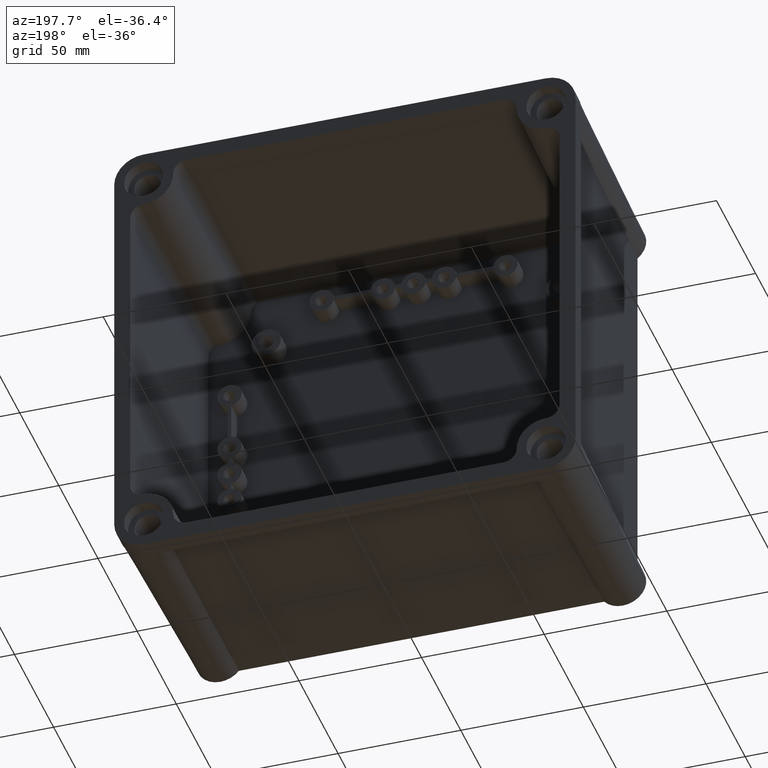
[diagram: clean part render]
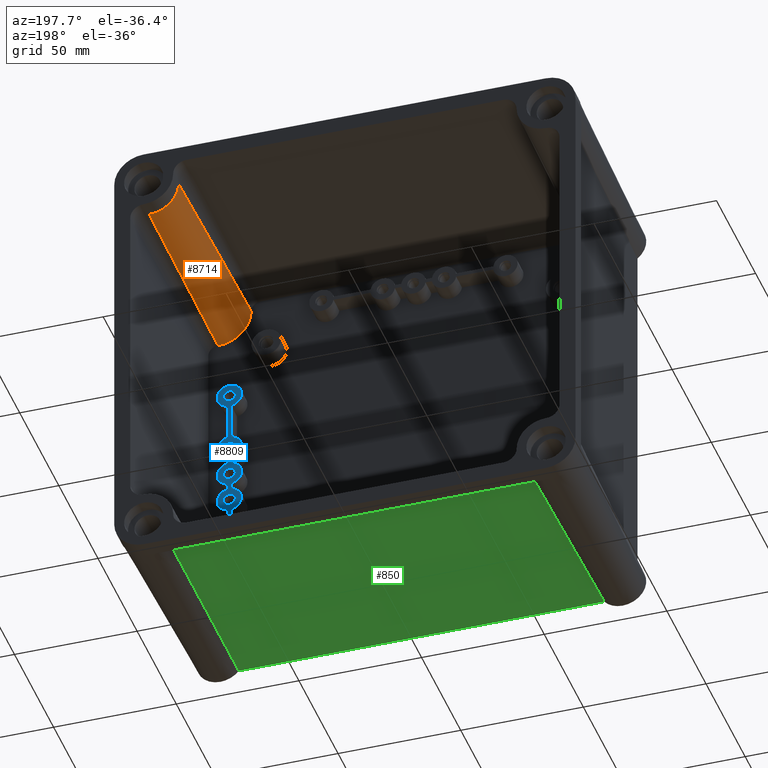
[diagram: same view with three faces highlighted in distinct colors, each labeled with its STEP entity id]
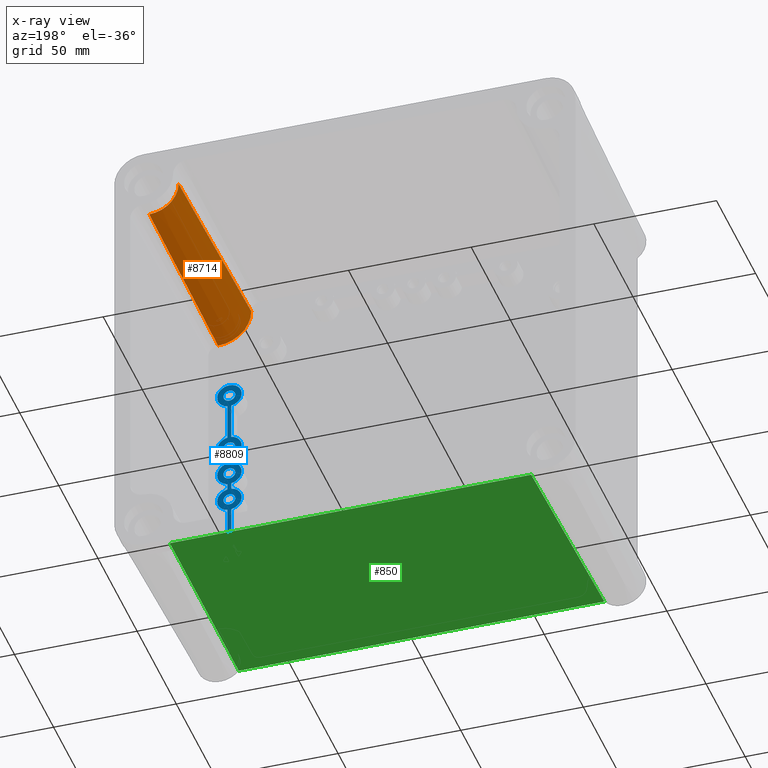
[diagram: x-ray of the same camera — body ghosted, the three highlighted faces saturated]
A machine part, auxiliary view with three faces highlighted in distinct colors.
The next image is the same camera in x-ray (body ghosted, the three faces saturated) — at least one of them is partly hidden behind the body in this view.
Their STEP definitions:

[orange] entity #8714 — the highlighted conical surface has half-angle 1 deg.
#1288 = CARTESIAN_POINT ( 'NONE',  ( 68.46395428631680600, 3.000000000000002700, 82.00000000000000000 ) ) ;
#1312 = CARTESIAN_POINT ( 'NONE',  ( 81.99999999999998600, 3.000000000000002700, 68.46395428631682000 ) ) ;
#1316 = DIRECTION ( 'NONE',  ( 0.0000000000000000000, 0.0000000000000000000, 1.000000000000000000 ) ) ;
#1317 = DIRECTION ( 'NONE',  ( 0.0000000000000000000, 1.000000000000000000, 0.0000000000000000000 ) ) ;
#1318 = CARTESIAN_POINT ( 'NONE',  ( 81.99999999999998600, 3.000000000000002700, 82.00000000000000000 ) ) ;
#1319 = AXIS2_PLACEMENT_3D ( 'NONE', #1318, #1317, #1316 ) ;
#1320 = CIRCLE ( 'NONE', #1319, 13.53604571368317800 ) ;
#1714 = VERTEX_POINT ( 'NONE', #1288 ) ;
#1796 = EDGE_CURVE ( 'NONE', #1918, #1714, #1320, .T. ) ;
#1918 = VERTEX_POINT ( 'NONE', #1312 ) ;
#2246 = CIRCLE ( 'NONE', #2258, 12.00000000000001100 ) ;
#2250 = CARTESIAN_POINT ( 'NONE',  ( 81.99999999999998600, 91.00000000000000000, 82.00000000000000000 ) ) ;
#2258 = AXIS2_PLACEMENT_3D ( 'NONE', #2250, #2297, #2296 ) ;
#2269 = CARTESIAN_POINT ( 'NONE',  ( 81.99999999999998600, 91.00000000000000000, 69.99999999999998600 ) ) ;
#2273 = CARTESIAN_POINT ( 'NONE',  ( 69.99999999999997200, 91.00000000000000000, 82.00000000000000000 ) ) ;
#2296 = DIRECTION ( 'NONE',  ( 0.0000000000000000000, 0.0000000000000000000, -1.000000000000000000 ) ) ;
#2297 = DIRECTION ( 'NONE',  ( 0.0000000000000000000, -1.000000000000000000, -0.0000000000000000000 ) ) ;
#4281 = DIRECTION ( 'NONE',  ( -0.0000000000000000000, 0.9998476951563911600, 0.01745240643728355300 ) ) ;
#4282 = VECTOR ( 'NONE', #4281, 1000.000000000000200 ) ;
#4285 = CARTESIAN_POINT ( 'NONE',  ( 81.99999999999998600, 91.00000000000000000, 69.99999999999998600 ) ) ;
#4286 = LINE ( 'NONE', #4285, #4282 ) ;
#4295 = AXIS2_PLACEMENT_3D ( 'NONE', #4352, #4351, #4355 ) ;
#4301 = CONICAL_SURFACE ( 'NONE', #4295, 12.00000000000002500, 0.01745329251994333400 ) ;
#4308 = FACE_OUTER_BOUND ( 'NONE', #8730, .T. ) ;
#4328 = DIRECTION ( 'NONE',  ( 0.01745240643728355000, 0.9998476951563911600, -0.0000000000000000000 ) ) ;
#4329 = VECTOR ( 'NONE', #4328, 1000.000000000000200 ) ;
#4330 = CARTESIAN_POINT ( 'NONE',  ( 69.99999999999997200, 91.00000000000000000, 82.00000000000000000 ) ) ;
#4334 = LINE ( 'NONE', #4330, #4329 ) ;
#4351 = DIRECTION ( 'NONE',  ( 0.0000000000000000000, -1.000000000000000000, 0.0000000000000000000 ) ) ;
#4352 = CARTESIAN_POINT ( 'NONE',  ( 81.99999999999998600, 91.00000000000000000, 82.00000000000000000 ) ) ;
#4355 = DIRECTION ( 'NONE',  ( 0.0000000000000000000, 0.0000000000000000000, 1.000000000000000000 ) ) ;
#6947 = VERTEX_POINT ( 'NONE', #2273 ) ;
#6953 = VERTEX_POINT ( 'NONE', #2269 ) ;
#6977 = EDGE_CURVE ( 'NONE', #6947, #6953, #2246, .T. ) ;
#8606 = EDGE_CURVE ( 'NONE', #1918, #6953, #4286, .T. ) ;
#8609 = ORIENTED_EDGE ( 'NONE', *, *, #1796, .T. ) ;
#8683 = ORIENTED_EDGE ( 'NONE', *, *, #6977, .T. ) ;
#8714 = ADVANCED_FACE ( 'NONE', ( #4308 ), #4301, .T. ) ;
#8726 = EDGE_CURVE ( 'NONE', #1714, #6947, #4334, .T. ) ;
#8730 = EDGE_LOOP ( 'NONE', ( #8609, #8820, #8683, #8739 ) ) ;
#8739 = ORIENTED_EDGE ( 'NONE', *, *, #8606, .F. ) ;
#8820 = ORIENTED_EDGE ( 'NONE', *, *, #8726, .T. ) ;

[blue] entity #8809 — the highlighted planar face has unit normal (0, 1, -0).
#1897 = CIRCLE ( 'NONE', #1959, 5.000000000000004400 ) ;
#1939 = DIRECTION ( 'NONE',  ( 0.0000000000000000000, 0.0000000000000000000, 1.000000000000000000 ) ) ;
#1940 = DIRECTION ( 'NONE',  ( -0.0000000000000000000, -1.000000000000000000, 0.0000000000000000000 ) ) ;
#1959 = AXIS2_PLACEMENT_3D ( 'NONE', #1962, #1940, #1939 ) ;
#1962 = CARTESIAN_POINT ( 'NONE',  ( 75.00000000000000000, 10.49999999999999800, -37.49999999999999300 ) ) ;
#2089 = CARTESIAN_POINT ( 'NONE',  ( 75.00000000000000000, 10.49999999999999800, 2.400000000000000800 ) ) ;
#2093 = CARTESIAN_POINT ( 'NONE',  ( 75.00000000000000000, 10.49999999999999800, -2.400000000000000800 ) ) ;
#2182 = AXIS2_PLACEMENT_3D ( 'NONE', #2222, #2267, #2266 ) ;
#2222 = CARTESIAN_POINT ( 'NONE',  ( 75.00000000000000000, 10.49999999999999800, 0.0000000000000000000 ) ) ;
#2266 = DIRECTION ( 'NONE',  ( 0.0000000000000000000, 0.0000000000000000000, 1.000000000000000000 ) ) ;
#2267 = DIRECTION ( 'NONE',  ( 0.0000000000000000000, 1.000000000000000000, 0.0000000000000000000 ) ) ;
#2274 = CIRCLE ( 'NONE', #2182, 2.400000000000000800 ) ;
#3096 = LINE ( 'NONE', #3380, #3654 ) ;
#3112 = DIRECTION ( 'NONE',  ( 0.0000000000000000000, 1.000000000000000000, -0.0000000000000000000 ) ) ;
#3116 = DIRECTION ( 'NONE',  ( 0.0000000000000000000, 0.0000000000000000000, 1.000000000000000000 ) ) ;
#3380 = CARTESIAN_POINT ( 'NONE',  ( 75.75000000000000000, 10.49999999999999800, -37.50000000000000700 ) ) ;
#3424 = DIRECTION ( 'NONE',  ( 0.0000000000000000000, 0.0000000000000000000, 1.000000000000000000 ) ) ;
#3425 = DIRECTION ( 'NONE',  ( 0.0000000000000000000, 1.000000000000000000, 0.0000000000000000000 ) ) ;
#3433 = AXIS2_PLACEMENT_3D ( 'NONE', #3441, #3425, #3424 ) ;
#3441 = CARTESIAN_POINT ( 'NONE',  ( 75.00000000000000000, 10.49999999999999800, 12.49999999999999300 ) ) ;
#3445 = CIRCLE ( 'NONE', #3433, 2.400000000000001200 ) ;
#3483 = CARTESIAN_POINT ( 'NONE',  ( 75.00000000000000000, 10.49999999999999800, -10.09999999999999100 ) ) ;
#3513 = CARTESIAN_POINT ( 'NONE',  ( 75.00000000000000000, 10.49999999999999800, 10.09999999999999100 ) ) ;
#3531 = CIRCLE ( 'NONE', #3568, 2.400000000000001200 ) ;
#3540 = CARTESIAN_POINT ( 'NONE',  ( 75.00000000000000000, 10.49999999999999800, 14.89999999999999300 ) ) ;
#3548 = CARTESIAN_POINT ( 'NONE',  ( 75.00000000000000000, 10.49999999999999800, 39.89999999999999100 ) ) ;
#3556 = CARTESIAN_POINT ( 'NONE',  ( 75.00000000000000000, 10.49999999999999800, -35.09999999999999400 ) ) ;
#3557 = CARTESIAN_POINT ( 'NONE',  ( 75.00000000000000000, 10.49999999999999800, -14.89999999999999300 ) ) ;
#3565 = DIRECTION ( 'NONE',  ( 0.0000000000000000000, 0.0000000000000000000, 1.000000000000000000 ) ) ;
#3566 = DIRECTION ( 'NONE',  ( 0.0000000000000000000, 1.000000000000000000, 0.0000000000000000000 ) ) ;
#3567 = CARTESIAN_POINT ( 'NONE',  ( 75.00000000000000000, 10.49999999999999800, -12.49999999999999300 ) ) ;
#3568 = AXIS2_PLACEMENT_3D ( 'NONE', #3567, #3566, #3565 ) ;
#3572 = CARTESIAN_POINT ( 'NONE',  ( 75.00000000000000000, 10.49999999999999800, -39.89999999999999100 ) ) ;
#3597 = DIRECTION ( 'NONE',  ( 0.0000000000000000000, 0.0000000000000000000, 1.000000000000000000 ) ) ;
#3598 = DIRECTION ( 'NONE',  ( 0.0000000000000000000, 1.000000000000000000, 0.0000000000000000000 ) ) ;
#3599 = CARTESIAN_POINT ( 'NONE',  ( 75.00000000000000000, 10.49999999999999800, -37.49999999999999300 ) ) ;
#3600 = AXIS2_PLACEMENT_3D ( 'NONE', #3599, #3598, #3597 ) ;
#3601 = CIRCLE ( 'NONE', #3600, 2.399999999999999500 ) ;
#3624 = CARTESIAN_POINT ( 'NONE',  ( 75.00000000000000000, 10.49999999999999800, 37.49999999999999300 ) ) ;
#3643 = DIRECTION ( 'NONE',  ( 1.850371707708594300E-016, 0.0000000000000000000, 1.000000000000000000 ) ) ;
#3645 = CARTESIAN_POINT ( 'NONE',  ( 75.00000000000000000, 10.49999999999999800, 0.0000000000000000000 ) ) ;
#3646 = AXIS2_PLACEMENT_3D ( 'NONE', #3645, #3112, #3116 ) ;
#3652 = CIRCLE ( 'NONE', #3646, 4.999999999999989300 ) ;
#3654 = VECTOR ( 'NONE', #3643, 1000.000000000000000 ) ;
#3659 = DIRECTION ( 'NONE',  ( 0.0000000000000000000, 0.0000000000000000000, 1.000000000000000000 ) ) ;
#3660 = DIRECTION ( 'NONE',  ( 0.0000000000000000000, 1.000000000000000000, 0.0000000000000000000 ) ) ;
#3671 = AXIS2_PLACEMENT_3D ( 'NONE', #3624, #3660, #3659 ) ;
#3681 = CIRCLE ( 'NONE', #3671, 2.399999999999999500 ) ;
#3682 = CARTESIAN_POINT ( 'NONE',  ( 75.00000000000000000, 10.49999999999999800, 35.09999999999999400 ) ) ;
#4298 = CARTESIAN_POINT ( 'NONE',  ( 75.74999999999998600, 10.49999999999999800, 32.55657001667868400 ) ) ;
#4337 = CARTESIAN_POINT ( 'NONE',  ( 74.24999999999998600, 10.49999999999999800, -4.943429983321284900 ) ) ;
#4341 = CARTESIAN_POINT ( 'NONE',  ( 75.00000000000000000, 10.49999999999999800, -12.49999999999999300 ) ) ;
#4361 = CARTESIAN_POINT ( 'NONE',  ( 74.24999999999998600, 10.49999999999999800, 32.55657001667869100 ) ) ;
#4362 = DIRECTION ( 'NONE',  ( 0.0000000000000000000, 0.0000000000000000000, 1.000000000000000000 ) ) ;
#4363 = DIRECTION ( 'NONE',  ( -0.0000000000000000000, -1.000000000000000000, 0.0000000000000000000 ) ) ;
#4364 = AXIS2_PLACEMENT_3D ( 'NONE', #4430, #4414, #4413 ) ;
#4365 = CARTESIAN_POINT ( 'NONE',  ( 75.00000000000000000, 10.49999999999999800, 0.0000000000000000000 ) ) ;
#4368 = DIRECTION ( 'NONE',  ( 0.0000000000000000000, 0.0000000000000000000, 1.000000000000000000 ) ) ;
#4369 = VECTOR ( 'NONE', #4368, 1000.000000000000000 ) ;
#4370 = CIRCLE ( 'NONE', #4371, 4.999999999999989300 ) ;
#4371 = AXIS2_PLACEMENT_3D ( 'NONE', #4341, #4363, #4362 ) ;
#4372 = CIRCLE ( 'NONE', #4364, 2.400000000000001200 ) ;
#4373 = CARTESIAN_POINT ( 'NONE',  ( 74.24999999999998600, 10.49999999999999800, 7.556570016678707100 ) ) ;
#4374 = DIRECTION ( 'NONE',  ( 0.0000000000000000000, 0.0000000000000000000, 1.000000000000000000 ) ) ;
#4375 = DIRECTION ( 'NONE',  ( 0.0000000000000000000, 1.000000000000000000, -0.0000000000000000000 ) ) ;
#4376 = CARTESIAN_POINT ( 'NONE',  ( 74.25000000000000000, 10.49999999999999800, -37.50000000000000700 ) ) ;
#4377 = LINE ( 'NONE', #4376, #4369 ) ;
#4381 = CIRCLE ( 'NONE', #4386, 4.999999999999988500 ) ;
#4382 = CARTESIAN_POINT ( 'NONE',  ( 74.24999999999998600, 10.49999999999999800, 4.943429983321284900 ) ) ;
#4385 = CARTESIAN_POINT ( 'NONE',  ( 74.24999999999998600, 10.49999999999999800, 17.44342998332127300 ) ) ;
#4386 = AXIS2_PLACEMENT_3D ( 'NONE', #4390, #4375, #4374 ) ;
#4390 = CARTESIAN_POINT ( 'NONE',  ( 75.00000000000000000, 10.49999999999999800, 12.49999999999999300 ) ) ;
#4391 = CIRCLE ( 'NONE', #4433, 2.400000000000000800 ) ;
#4397 = FACE_OUTER_BOUND ( 'NONE', #8769, .T. ) ;
#4398 = FACE_BOUND ( 'NONE', #8818, .T. ) ;
#4399 = DIRECTION ( 'NONE',  ( 0.0000000000000000000, 0.0000000000000000000, 1.000000000000000000 ) ) ;
#4400 = DIRECTION ( 'NONE',  ( 0.0000000000000000000, 1.000000000000000000, 0.0000000000000000000 ) ) ;
#4401 = AXIS2_PLACEMENT_3D ( 'NONE', #4409, #4455, #4454 ) ;
#4402 = FACE_BOUND ( 'NONE', #8774, .T. ) ;
#4403 = FACE_BOUND ( 'NONE', #8797, .T. ) ;
#4406 = FACE_BOUND ( 'NONE', #8808, .T. ) ;
#4409 = CARTESIAN_POINT ( 'NONE',  ( -189.2621207869946100, 10.49999999999999800, 2.824565742577563400E-014 ) ) ;
#4410 = CIRCLE ( 'NONE', #4411, 2.399999999999999500 ) ;
#4411 = AXIS2_PLACEMENT_3D ( 'NONE', #4424, #4400, #4399 ) ;
#4413 = DIRECTION ( 'NONE',  ( 0.0000000000000000000, 0.0000000000000000000, 1.000000000000000000 ) ) ;
#4414 = DIRECTION ( 'NONE',  ( 0.0000000000000000000, 1.000000000000000000, 0.0000000000000000000 ) ) ;
#4416 = FACE_BOUND ( 'NONE', #8794, .T. ) ;
#4417 = DIRECTION ( 'NONE',  ( 0.0000000000000000000, 0.0000000000000000000, 1.000000000000000000 ) ) ;
#4418 = DIRECTION ( 'NONE',  ( 0.0000000000000000000, 1.000000000000000000, 0.0000000000000000000 ) ) ;
#4419 = CARTESIAN_POINT ( 'NONE',  ( 75.00000000000000000, 10.49999999999999800, 37.49999999999999300 ) ) ;
#4420 = AXIS2_PLACEMENT_3D ( 'NONE', #4419, #4418, #4417 ) ;
#4421 = CIRCLE ( 'NONE', #4420, 2.399999999999999500 ) ;
#4422 = PLANE ( 'NONE',  #4401 ) ;
#4424 = CARTESIAN_POINT ( 'NONE',  ( 75.00000000000000000, 10.49999999999999800, -37.49999999999999300 ) ) ;
#4425 = DIRECTION ( 'NONE',  ( 0.0000000000000000000, 0.0000000000000000000, 1.000000000000000000 ) ) ;
#4426 = DIRECTION ( 'NONE',  ( 0.0000000000000000000, 1.000000000000000000, 0.0000000000000000000 ) ) ;
#4427 = CARTESIAN_POINT ( 'NONE',  ( 75.00000000000000000, 10.49999999999999800, -12.49999999999999300 ) ) ;
#4428 = AXIS2_PLACEMENT_3D ( 'NONE', #4427, #4426, #4425 ) ;
#4429 = CIRCLE ( 'NONE', #4428, 2.400000000000001200 ) ;
#4430 = CARTESIAN_POINT ( 'NONE',  ( 75.00000000000000000, 10.49999999999999800, 12.49999999999999300 ) ) ;
#4431 = DIRECTION ( 'NONE',  ( 0.0000000000000000000, 0.0000000000000000000, 1.000000000000000000 ) ) ;
#4432 = DIRECTION ( 'NONE',  ( 0.0000000000000000000, 1.000000000000000000, 0.0000000000000000000 ) ) ;
#4433 = AXIS2_PLACEMENT_3D ( 'NONE', #4365, #4432, #4431 ) ;
#4434 = CARTESIAN_POINT ( 'NONE',  ( 75.74999999999998600, 10.49999999999999800, 7.556570016678703500 ) ) ;
#4435 = CIRCLE ( 'NONE', #4503, 5.000000000000004400 ) ;
#4436 = CIRCLE ( 'NONE', #4499, 4.999999999999988500 ) ;
#4437 = CARTESIAN_POINT ( 'NONE',  ( 75.00000000000000000, 10.49999999999999800, -37.49999999999999300 ) ) ;
#4446 = CARTESIAN_POINT ( 'NONE',  ( 75.74999999999998600, 10.49999999999999800, -32.55657001667868400 ) ) ;
#4448 = DIRECTION ( 'NONE',  ( 0.0000000000000000000, 0.0000000000000000000, 1.000000000000000000 ) ) ;
#4449 = DIRECTION ( 'NONE',  ( 0.0000000000000000000, 1.000000000000000000, -0.0000000000000000000 ) ) ;
#4454 = DIRECTION ( 'NONE',  ( 0.0000000000000000000, 0.0000000000000000000, 1.000000000000000000 ) ) ;
#4455 = DIRECTION ( 'NONE',  ( 0.0000000000000000000, 1.000000000000000000, -0.0000000000000000000 ) ) ;
#4457 = CIRCLE ( 'NONE', #4460, 5.000000000000004400 ) ;
#4459 = CARTESIAN_POINT ( 'NONE',  ( 75.00000000000000000, 10.49999999999999800, 37.49999999999999300 ) ) ;
#4460 = AXIS2_PLACEMENT_3D ( 'NONE', #4459, #4449, #4448 ) ;
#4466 = CARTESIAN_POINT ( 'NONE',  ( 75.74999999999998600, 10.49999999999999800, -17.44342998332128000 ) ) ;
#4467 = DIRECTION ( 'NONE',  ( 1.850371707708594300E-016, 0.0000000000000000000, 1.000000000000000000 ) ) ;
#4468 = VECTOR ( 'NONE', #4467, 1000.000000000000000 ) ;
#4469 = CARTESIAN_POINT ( 'NONE',  ( 75.75000000000000000, 10.49999999999999800, -37.50000000000000700 ) ) ;
#4470 = CARTESIAN_POINT ( 'NONE',  ( 75.74999999999998600, 10.49999999999999800, 4.943429983321289400 ) ) ;
#4471 = DIRECTION ( 'NONE',  ( 1.850371707708594300E-016, 0.0000000000000000000, 1.000000000000000000 ) ) ;
#4472 = VECTOR ( 'NONE', #4471, 1000.000000000000000 ) ;
#4473 = CARTESIAN_POINT ( 'NONE',  ( 75.74999999999998600, 10.49999999999999800, -2.079143562463510900E-014 ) ) ;
#4475 = LINE ( 'NONE', #4469, #4468 ) ;
#4480 = DIRECTION ( 'NONE',  ( 0.0000000000000000000, 0.0000000000000000000, 1.000000000000000000 ) ) ;
#4481 = DIRECTION ( 'NONE',  ( 0.0000000000000000000, 1.000000000000000000, -0.0000000000000000000 ) ) ;
#4482 = CARTESIAN_POINT ( 'NONE',  ( 75.00000000000000000, 10.49999999999999800, 12.49999999999999300 ) ) ;
#4483 = LINE ( 'NONE', #4473, #4472 ) ;
#4487 = DIRECTION ( 'NONE',  ( 0.0000000000000000000, 0.0000000000000000000, 1.000000000000000000 ) ) ;
#4488 = DIRECTION ( 'NONE',  ( -0.0000000000000000000, -1.000000000000000000, 0.0000000000000000000 ) ) ;
#4489 = CARTESIAN_POINT ( 'NONE',  ( 75.00000000000000000, 10.49999999999999800, -12.49999999999999300 ) ) ;
#4490 = CARTESIAN_POINT ( 'NONE',  ( 75.74999999999998600, 10.49999999999999800, -7.556570016678702700 ) ) ;
#4492 = CIRCLE ( 'NONE', #4500, 4.999999999999989300 ) ;
#4494 = CARTESIAN_POINT ( 'NONE',  ( 75.74999999999998600, 10.49999999999999800, 17.44342998332128000 ) ) ;
#4499 = AXIS2_PLACEMENT_3D ( 'NONE', #4482, #4481, #4480 ) ;
#4500 = AXIS2_PLACEMENT_3D ( 'NONE', #4489, #4488, #4487 ) ;
#4501 = DIRECTION ( 'NONE',  ( 0.0000000000000000000, 0.0000000000000000000, 1.000000000000000000 ) ) ;
#4502 = DIRECTION ( 'NONE',  ( -0.0000000000000000000, -1.000000000000000000, 0.0000000000000000000 ) ) ;
#4503 = AXIS2_PLACEMENT_3D ( 'NONE', #4437, #4502, #4501 ) ;
#4512 = DIRECTION ( 'NONE',  ( 0.0000000000000000000, 0.0000000000000000000, 1.000000000000000000 ) ) ;
#4513 = VECTOR ( 'NONE', #4512, 1000.000000000000000 ) ;
#4514 = CARTESIAN_POINT ( 'NONE',  ( 74.25000000000000000, 10.49999999999999800, -37.50000000000000700 ) ) ;
#4515 = LINE ( 'NONE', #4514, #4513 ) ;
#4516 = DIRECTION ( 'NONE',  ( 0.0000000000000000000, 0.0000000000000000000, 1.000000000000000000 ) ) ;
#4517 = VECTOR ( 'NONE', #4516, 1000.000000000000000 ) ;
#4518 = AXIS2_PLACEMENT_3D ( 'NONE', #4571, #4570, #4569 ) ;
#4519 = CARTESIAN_POINT ( 'NONE',  ( 74.25000000000000000, 10.49999999999999800, -37.50000000000000700 ) ) ;
#4520 = LINE ( 'NONE', #4519, #4517 ) ;
#4525 = DIRECTION ( 'NONE',  ( 0.0000000000000000000, 0.0000000000000000000, 1.000000000000000000 ) ) ;
#4526 = VECTOR ( 'NONE', #4525, 1000.000000000000000 ) ;
#4527 = CARTESIAN_POINT ( 'NONE',  ( 74.24999999999998600, 10.49999999999999800, 2.824565742577563400E-014 ) ) ;
#4531 = CARTESIAN_POINT ( 'NONE',  ( 74.24999999999998600, 10.49999999999999800, -17.44342998332127300 ) ) ;
#4533 = CARTESIAN_POINT ( 'NONE',  ( 74.24999999999998600, 10.49999999999999800, -7.556570016678707100 ) ) ;
#4534 = CIRCLE ( 'NONE', #4518, 4.999999999999989300 ) ;
#4535 = CARTESIAN_POINT ( 'NONE',  ( 75.74999999999998600, 10.49999999999999800, -4.943429983321289400 ) ) ;
#4537 = LINE ( 'NONE', #4527, #4526 ) ;
#4569 = DIRECTION ( 'NONE',  ( 0.0000000000000000000, 0.0000000000000000000, 1.000000000000000000 ) ) ;
#4570 = DIRECTION ( 'NONE',  ( 0.0000000000000000000, 1.000000000000000000, -0.0000000000000000000 ) ) ;
#4571 = CARTESIAN_POINT ( 'NONE',  ( 75.00000000000000000, 10.49999999999999800, 0.0000000000000000000 ) ) ;
#4579 = DIRECTION ( 'NONE',  ( 1.850371707708594300E-016, 0.0000000000000000000, 1.000000000000000000 ) ) ;
#4580 = VECTOR ( 'NONE', #4579, 1000.000000000000000 ) ;
#4582 = CARTESIAN_POINT ( 'NONE',  ( 75.75000000000000000, 10.49999999999999800, -37.50000000000000700 ) ) ;
#4584 = LINE ( 'NONE', #4582, #4580 ) ;
#6391 = EDGE_CURVE ( 'NONE', #13492, #13509, #1897, .T. ) ;
#6797 = VERTEX_POINT ( 'NONE', #2093 ) ;
#6807 = VERTEX_POINT ( 'NONE', #2089 ) ;
#6940 = EDGE_CURVE ( 'NONE', #6797, #6807, #2274, .T. ) ;
#7891 = EDGE_CURVE ( 'NONE', #7999, #7965, #3445, .T. ) ;
#7961 = VERTEX_POINT ( 'NONE', #3548 ) ;
#7965 = VERTEX_POINT ( 'NONE', #3540 ) ;
#7968 = VERTEX_POINT ( 'NONE', #3483 ) ;
#7991 = EDGE_CURVE ( 'NONE', #8021, #7968, #3531, .T. ) ;
#7994 = VERTEX_POINT ( 'NONE', #3572 ) ;
#7999 = VERTEX_POINT ( 'NONE', #3513 ) ;
#8012 = VERTEX_POINT ( 'NONE', #3556 ) ;
#8019 = EDGE_CURVE ( 'NONE', #7994, #8012, #3601, .T. ) ;
#8021 = VERTEX_POINT ( 'NONE', #3557 ) ;
#8075 = VERTEX_POINT ( 'NONE', #3682 ) ;
#8078 = EDGE_CURVE ( 'NONE', #8075, #7961, #3681, .T. ) ;
#8591 = ORIENTED_EDGE ( 'NONE', *, *, #8854, .F. ) ;
#8653 = CARTESIAN_POINT ( 'NONE',  ( 74.24999999999998600, 10.49999999999999800, -32.55657001667869100 ) ) ;
#8687 = CARTESIAN_POINT ( 'NONE',  ( 75.00000000000000000, 10.49999999999999800, -42.49999999999999300 ) ) ;
#8708 = VERTEX_POINT ( 'NONE', #4298 ) ;
#8752 = VERTEX_POINT ( 'NONE', #4385 ) ;
#8753 = ORIENTED_EDGE ( 'NONE', *, *, #8812, .T. ) ;
#8754 = EDGE_CURVE ( 'NONE', #8762, #8752, #4381, .T. ) ;
#8756 = VERTEX_POINT ( 'NONE', #4382 ) ;
#8757 = VERTEX_POINT ( 'NONE', #4337 ) ;
#8760 = EDGE_CURVE ( 'NONE', #8868, #8757, #4377, .T. ) ;
#8762 = VERTEX_POINT ( 'NONE', #4373 ) ;
#8764 = ORIENTED_EDGE ( 'NONE', *, *, #8754, .T. ) ;
#8766 = EDGE_CURVE ( 'NONE', #8868, #8870, #4370, .T. ) ;
#8767 = ORIENTED_EDGE ( 'NONE', *, *, #8766, .F. ) ;
#8768 = ORIENTED_EDGE ( 'NONE', *, *, #8785, .F. ) ;
#8769 = EDGE_LOOP ( 'NONE', ( #8771, #8772, #8767, #8880, #8873, #8882, #8764, #8884, #8753, #8591, #8842, #8844, #8864, #8846, #8857, #8850, #8958 ) ) ;
#8771 = ORIENTED_EDGE ( 'NONE', *, *, #6391, .F. ) ;
#8772 = ORIENTED_EDGE ( 'NONE', *, *, #8876, .T. ) ;
#8774 = EDGE_LOOP ( 'NONE', ( #8776, #8783 ) ) ;
#8776 = ORIENTED_EDGE ( 'NONE', *, *, #8790, .F. ) ;
#8777 = ORIENTED_EDGE ( 'NONE', *, *, #8789, .F. ) ;
#8779 = ORIENTED_EDGE ( 'NONE', *, *, #6940, .F. ) ;
#8780 = ORIENTED_EDGE ( 'NONE', *, *, #8782, .F. ) ;
#8782 = EDGE_CURVE ( 'NONE', #6807, #6797, #4391, .T. ) ;
#8783 = ORIENTED_EDGE ( 'NONE', *, *, #7891, .F. ) ;
#8785 = EDGE_CURVE ( 'NONE', #7968, #8021, #4429, .T. ) ;
#8788 = ORIENTED_EDGE ( 'NONE', *, *, #7991, .F. ) ;
#8789 = EDGE_CURVE ( 'NONE', #7961, #8075, #4421, .T. ) ;
#8790 = EDGE_CURVE ( 'NONE', #7965, #7999, #4372, .T. ) ;
#8793 = ORIENTED_EDGE ( 'NONE', *, *, #8078, .F. ) ;
#8794 = EDGE_LOOP ( 'NONE', ( #8777, #8793 ) ) ;
#8797 = EDGE_LOOP ( 'NONE', ( #8780, #8779 ) ) ;
#8799 = VERTEX_POINT ( 'NONE', #4361 ) ;
#8800 = ORIENTED_EDGE ( 'NONE', *, *, #8804, .F. ) ;
#8804 = EDGE_CURVE ( 'NONE', #8012, #7994, #4410, .T. ) ;
#8808 = EDGE_LOOP ( 'NONE', ( #8768, #8788 ) ) ;
#8809 = ADVANCED_FACE ( 'NONE', ( #4398, #4406, #4402, #4416, #4403, #4397 ), #4422, .T. ) ;
#8810 = ORIENTED_EDGE ( 'NONE', *, *, #8019, .F. ) ;
#8812 = EDGE_CURVE ( 'NONE', #8799, #8708, #4457, .T. ) ;
#8818 = EDGE_LOOP ( 'NONE', ( #8800, #8810 ) ) ;
#8825 = VERTEX_POINT ( 'NONE', #4446 ) ;
#8832 = EDGE_CURVE ( 'NONE', #13509, #8825, #4435, .T. ) ;
#8840 = VERTEX_POINT ( 'NONE', #4434 ) ;
#8842 = ORIENTED_EDGE ( 'NONE', *, *, #8845, .T. ) ;
#8843 = EDGE_CURVE ( 'NONE', #8858, #8849, #4492, .T. ) ;
#8844 = ORIENTED_EDGE ( 'NONE', *, *, #8862, .F. ) ;
#8845 = EDGE_CURVE ( 'NONE', #8853, #8840, #4436, .T. ) ;
#8846 = ORIENTED_EDGE ( 'NONE', *, *, #8855, .F. ) ;
#8849 = VERTEX_POINT ( 'NONE', #4490 ) ;
#8850 = ORIENTED_EDGE ( 'NONE', *, *, #8954, .F. ) ;
#8853 = VERTEX_POINT ( 'NONE', #4494 ) ;
#8854 = EDGE_CURVE ( 'NONE', #8853, #8708, #4483, .T. ) ;
#8855 = EDGE_CURVE ( 'NONE', #8849, #8866, #4475, .T. ) ;
#8857 = ORIENTED_EDGE ( 'NONE', *, *, #8843, .F. ) ;
#8858 = VERTEX_POINT ( 'NONE', #4466 ) ;
#8859 = EDGE_CURVE ( 'NONE', #8860, #8866, #3652, .T. ) ;
#8860 = VERTEX_POINT ( 'NONE', #4470 ) ;
#8862 = EDGE_CURVE ( 'NONE', #8860, #8840, #3096, .T. ) ;
#8864 = ORIENTED_EDGE ( 'NONE', *, *, #8859, .T. ) ;
#8866 = VERTEX_POINT ( 'NONE', #4535 ) ;
#8868 = VERTEX_POINT ( 'NONE', #4533 ) ;
#8870 = VERTEX_POINT ( 'NONE', #4531 ) ;
#8871 = EDGE_CURVE ( 'NONE', #8752, #8799, #4537, .T. ) ;
#8873 = ORIENTED_EDGE ( 'NONE', *, *, #8881, .T. ) ;
#8876 = EDGE_CURVE ( 'NONE', #13492, #8870, #4520, .T. ) ;
#8877 = EDGE_CURVE ( 'NONE', #8756, #8762, #4515, .T. ) ;
#8880 = ORIENTED_EDGE ( 'NONE', *, *, #8760, .T. ) ;
#8881 = EDGE_CURVE ( 'NONE', #8757, #8756, #4534, .T. ) ;
#8882 = ORIENTED_EDGE ( 'NONE', *, *, #8877, .T. ) ;
#8884 = ORIENTED_EDGE ( 'NONE', *, *, #8871, .T. ) ;
#8954 = EDGE_CURVE ( 'NONE', #8825, #8858, #4584, .T. ) ;
#8958 = ORIENTED_EDGE ( 'NONE', *, *, #8832, .F. ) ;
#13492 = VERTEX_POINT ( 'NONE', #8653 ) ;
#13509 = VERTEX_POINT ( 'NONE', #8687 ) ;

[green] entity #850 — the highlighted planar face has unit normal (0, -0.0262, -0.9997).
#89 = VERTEX_POINT ( 'NONE', #11618 ) ;
#94 = EDGE_CURVE ( 'NONE', #89, #105, #11646, .T. ) ;
#105 = VERTEX_POINT ( 'NONE', #11677 ) ;
#829 = ORIENTED_EDGE ( 'NONE', *, *, #898, .T. ) ;
#836 = EDGE_LOOP ( 'NONE', ( #922, #892, #829, #878 ) ) ;
#841 = EDGE_CURVE ( 'NONE', #843, #89, #13243, .T. ) ;
#843 = VERTEX_POINT ( 'NONE', #13210 ) ;
#850 = ADVANCED_FACE ( 'NONE', ( #13237 ), #13278, .T. ) ;
#878 = ORIENTED_EDGE ( 'NONE', *, *, #94, .F. ) ;
#892 = ORIENTED_EDGE ( 'NONE', *, *, #923, .F. ) ;
#898 = EDGE_CURVE ( 'NONE', #909, #105, #13393, .T. ) ;
#909 = VERTEX_POINT ( 'NONE', #13418 ) ;
#922 = ORIENTED_EDGE ( 'NONE', *, *, #841, .F. ) ;
#923 = EDGE_CURVE ( 'NONE', #909, #843, #13424, .T. ) ;
#6690 = CARTESIAN_POINT ( 'NONE',  ( -73.92176706917463500, 58.93709445376428100, -89.54332213288202500 ) ) ;
#6696 = CARTESIAN_POINT ( 'NONE',  ( -73.65600383250739500, 90.80000000000001100, -90.37768167848217600 ) ) ;
#8238 = CARTESIAN_POINT ( 'NONE',  ( -74.20326631212275000, 28.64116824328428000, -88.74999538526851900 ) ) ;
#11416 = CARTESIAN_POINT ( 'NONE',  ( -74.49968595274066300, 0.0000000000000000000, -88.00000000000000000 ) ) ;
#11618 = CARTESIAN_POINT ( 'NONE',  ( -73.65600383250739500, 90.80000000000001100, -90.37768167848217600 ) ) ;
#11646 =( BOUNDED_CURVE ( )  B_SPLINE_CURVE ( 3, ( #6696, #6690, #8238, #11416 ),
 .UNSPECIFIED., .F., .F. ) 
 B_SPLINE_CURVE_WITH_KNOTS ( ( 4, 4 ),
 ( 2.296409787259543000, 2.404077311027310600 ),
 .UNSPECIFIED. ) 
 CURVE ( )  GEOMETRIC_REPRESENTATION_ITEM ( )  RATIONAL_B_SPLINE_CURVE ( ( 1.000000000000000000, 0.9990342086388412900, 0.9990342086388412900, 1.000000000000000000 ) ) 
 REPRESENTATION_ITEM ( '' )  );
#11677 = CARTESIAN_POINT ( 'NONE',  ( -74.49968595274066300, 0.0000000000000000000, -88.00000000000000000 ) ) ;
#13210 = CARTESIAN_POINT ( 'NONE',  ( 73.65600383250738000, 90.80000000000001100, -90.37768167848217600 ) ) ;
#13237 = FACE_OUTER_BOUND ( 'NONE', #836, .T. ) ;
#13240 = DIRECTION ( 'NONE',  ( -1.000000000000000000, -0.0000000000000000000, -0.0000000000000000000 ) ) ;
#13241 = VECTOR ( 'NONE', #13240, 1000.000000000000000 ) ;
#13242 = CARTESIAN_POINT ( 'NONE',  ( -83.00000000000001400, 90.80000000000001100, -90.37768167848217600 ) ) ;
#13243 = LINE ( 'NONE', #13242, #13241 ) ;
#13249 = AXIS2_PLACEMENT_3D ( 'NONE', #13263, #13262, #13261 ) ;
#13261 = DIRECTION ( 'NONE',  ( 0.0000000000000000000, 0.9996573249755572600, -0.02617694830787320800 ) ) ;
#13262 = DIRECTION ( 'NONE',  ( 0.0000000000000000000, -0.02617694830787321200, -0.9996573249755573700 ) ) ;
#13263 = CARTESIAN_POINT ( 'NONE',  ( -83.00000000000001400, 0.0000000000000000000, -88.00000000000000000 ) ) ;
#13278 = PLANE ( 'NONE',  #13249 ) ;
#13390 = DIRECTION ( 'NONE',  ( -1.000000000000000000, -0.0000000000000000000, -0.0000000000000000000 ) ) ;
#13391 = VECTOR ( 'NONE', #13390, 1000.000000000000000 ) ;
#13392 = CARTESIAN_POINT ( 'NONE',  ( -83.00000000000001400, 0.0000000000000000000, -88.00000000000000000 ) ) ;
#13393 = LINE ( 'NONE', #13392, #13391 ) ;
#13418 = CARTESIAN_POINT ( 'NONE',  ( 74.49968595274066300, 0.0000000000000000000, -88.00000000000000000 ) ) ;
#13424 =( BOUNDED_CURVE ( )  B_SPLINE_CURVE ( 3, ( #13460, #13459, #13458, #13457 ),
 .UNSPECIFIED., .F., .F. ) 
 B_SPLINE_CURVE_WITH_KNOTS ( ( 4, 4 ),
 ( 3.879107996152274800, 3.986775519920042800 ),
 .UNSPECIFIED. ) 
 CURVE ( )  GEOMETRIC_REPRESENTATION_ITEM ( )  RATIONAL_B_SPLINE_CURVE ( ( 1.000000000000000000, 0.9990342086388412900, 0.9990342086388412900, 1.000000000000000000 ) ) 
 REPRESENTATION_ITEM ( '' )  );
#13457 = CARTESIAN_POINT ( 'NONE',  ( 73.65600383250738000, 90.80000000000001100, -90.37768167848217600 ) ) ;
#13458 = CARTESIAN_POINT ( 'NONE',  ( 73.92176706917463500, 58.93709445376407500, -89.54332213288203900 ) ) ;
#13459 = CARTESIAN_POINT ( 'NONE',  ( 74.20326631212275000, 28.64116824328389300, -88.74999538526850500 ) ) ;
#13460 = CARTESIAN_POINT ( 'NONE',  ( 74.49968595274066300, 0.0000000000000000000, -88.00000000000000000 ) ) ;